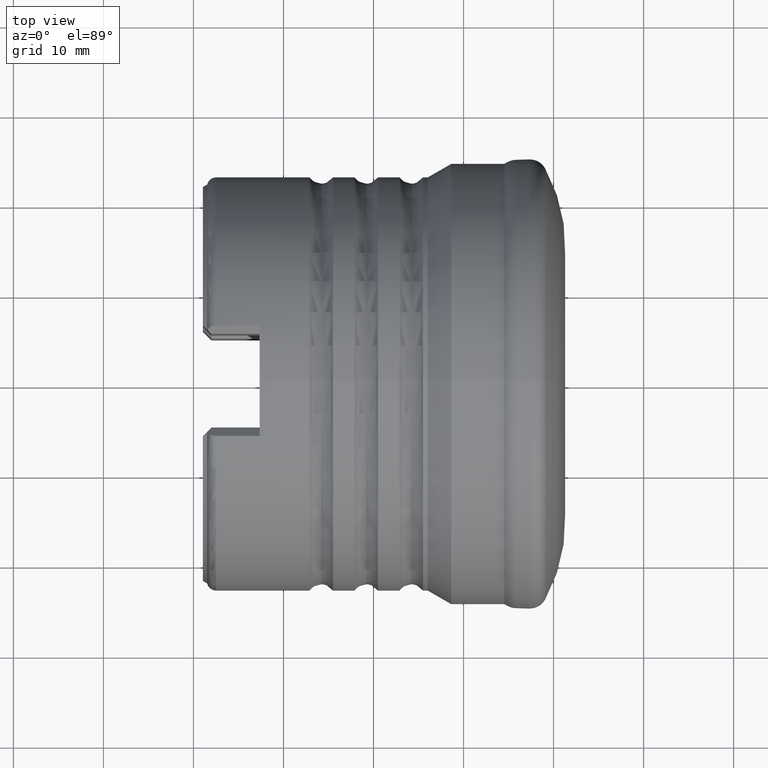
[diagram: clean part render]
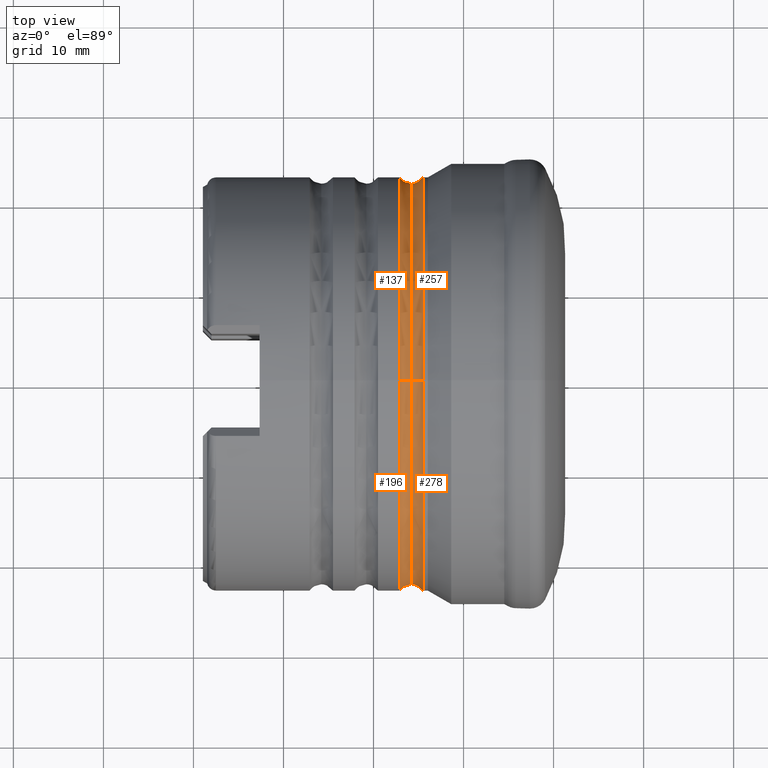
[diagram: same view with one multi-face feature highlighted, each face labeled with its STEP entity id]
A machine part, top view. The highlighted faces form ONE feature: a constant-radius fillet chain: 4 tangent blend faces with common blend radius 1.5 mm. The faces share edges in the B-rep.
Their STEP definitions:
[1] entity #196 (Torus):
#32 = EDGE_CURVE ( 'NONE', #401, #2545, #1471, .T. ) ;
#39 = EDGE_CURVE ( 'NONE', #2559, #401, #1397, .T. ) ;
#46 = EDGE_CURVE ( 'NONE', #2551, #2545, #1575, .T. ) ;
#104 = AXIS2_PLACEMENT_3D ( 'NONE', #1898, #1882, #1931 ) ;
#107 = AXIS2_PLACEMENT_3D ( 'NONE', #1879, #1804, #1837 ) ;
#109 = AXIS2_PLACEMENT_3D ( 'NONE', #1782, #1784, #1828 ) ;
#145 = AXIS2_PLACEMENT_3D ( 'NONE', #2411, #2450, #2378 ) ;
#196 = ADVANCED_FACE ( 'NONE', ( #1279 ), #1393, .F. ) ;
#331 = AXIS2_PLACEMENT_3D ( 'NONE', #871, #882, #883 ) ;
#401 = VERTEX_POINT ( 'NONE', #515 ) ;
#515 = CARTESIAN_POINT ( 'NONE',  ( -17.10000000000000100, 2.816687638038912400E-015, 22.99999999999999600 ) ) ;
#871 = CARTESIAN_POINT ( 'NONE',  ( -15.80096189432334000, 0.0000000000000000000, 0.0000000000000000000 ) ) ;
#882 = DIRECTION ( 'NONE',  ( 1.000000000000000000, -0.0000000000000000000, -0.0000000000000000000 ) ) ;
#883 = DIRECTION ( 'NONE',  ( 0.0000000000000000000, 0.0000000000000000000, -1.000000000000000000 ) ) ;
#1007 = CARTESIAN_POINT ( 'NONE',  ( -17.10000000000000100, 0.0000000000000000000, -22.99999999999999600 ) ) ;
#1012 = CARTESIAN_POINT ( 'NONE',  ( -15.80096189432334000, 0.0000000000000000000, -22.24999999999999300 ) ) ;
#1019 = CARTESIAN_POINT ( 'NONE',  ( -15.80096189432334000, 2.724839128102860200E-015, 22.24999999999999300 ) ) ;
#1265 = ORIENTED_EDGE ( 'NONE', *, *, #46, .F. ) ;
#1279 = FACE_OUTER_BOUND ( 'NONE', #1453, .T. ) ;
#1315 = ORIENTED_EDGE ( 'NONE', *, *, #32, .T. ) ;
#1393 = TOROIDAL_SURFACE ( 'NONE', #145, 23.74999999999999300, 1.500000000000000200 ) ;
#1397 = CIRCLE ( 'NONE', #107, 1.500000000000001300 ) ;
#1428 = ORIENTED_EDGE ( 'NONE', *, *, #39, .T. ) ;
#1453 = EDGE_LOOP ( 'NONE', ( #1657, #1428, #1315, #1265 ) ) ;
#1471 = CIRCLE ( 'NONE', #104, 22.99999999999999600 ) ;
#1575 = CIRCLE ( 'NONE', #109, 1.500000000000001300 ) ;
#1657 = ORIENTED_EDGE ( 'NONE', *, *, #2331, .F. ) ;
#1782 = CARTESIAN_POINT ( 'NONE',  ( -15.80096189432334000, 0.0000000000000000000, -23.74999999999999300 ) ) ;
#1784 = DIRECTION ( 'NONE',  ( -0.0000000000000000000, -1.000000000000000000, -0.0000000000000000000 ) ) ;
#1804 = DIRECTION ( 'NONE',  ( 0.0000000000000000000, 1.000000000000000000, -1.224646799147353200E-016 ) ) ;
#1828 = DIRECTION ( 'NONE',  ( 0.0000000000000000000, 0.0000000000000000000, -1.000000000000000000 ) ) ;
#1837 = DIRECTION ( 'NONE',  ( 0.0000000000000000000, 1.224646799147352000E-016, 1.000000000000000000 ) ) ;
#1879 = CARTESIAN_POINT ( 'NONE',  ( -15.80096189432334000, 2.908536147974963300E-015, 23.74999999999999300 ) ) ;
#1882 = DIRECTION ( 'NONE',  ( 1.000000000000000000, -0.0000000000000000000, -0.0000000000000000000 ) ) ;
#1898 = CARTESIAN_POINT ( 'NONE',  ( -17.10000000000000100, 0.0000000000000000000, 0.0000000000000000000 ) ) ;
#1931 = DIRECTION ( 'NONE',  ( 0.0000000000000000000, 0.0000000000000000000, -1.000000000000000000 ) ) ;
#2162 = CIRCLE ( 'NONE', #331, 22.24999999999999300 ) ;
#2331 = EDGE_CURVE ( 'NONE', #2559, #2551, #2162, .T. ) ;
#2378 = DIRECTION ( 'NONE',  ( 0.0000000000000000000, 0.0000000000000000000, -1.000000000000000000 ) ) ;
#2411 = CARTESIAN_POINT ( 'NONE',  ( -15.80096189432334000, 0.0000000000000000000, 0.0000000000000000000 ) ) ;
#2450 = DIRECTION ( 'NONE',  ( 1.000000000000000000, -0.0000000000000000000, -0.0000000000000000000 ) ) ;
#2545 = VERTEX_POINT ( 'NONE', #1007 ) ;
#2551 = VERTEX_POINT ( 'NONE', #1012 ) ;
#2559 = VERTEX_POINT ( 'NONE', #1019 ) ;
[2] entity #278 (Torus):
#193 = AXIS2_PLACEMENT_3D ( 'NONE', #2412, #2396, #2421 ) ;
#278 = ADVANCED_FACE ( 'NONE', ( #1097 ), #1274, .F. ) ;
#324 = AXIS2_PLACEMENT_3D ( 'NONE', #848, #857, #858 ) ;
#331 = AXIS2_PLACEMENT_3D ( 'NONE', #871, #882, #883 ) ;
#348 = AXIS2_PLACEMENT_3D ( 'NONE', #950, #959, #960 ) ;
#351 = AXIS2_PLACEMENT_3D ( 'NONE', #964, #970, #971 ) ;
#848 = CARTESIAN_POINT ( 'NONE',  ( -14.50192378864668000, 0.0000000000000000000, 0.0000000000000000000 ) ) ;
#857 = DIRECTION ( 'NONE',  ( 1.000000000000000000, -0.0000000000000000000, -0.0000000000000000000 ) ) ;
#858 = DIRECTION ( 'NONE',  ( 0.0000000000000000000, 0.0000000000000000000, -1.000000000000000000 ) ) ;
#871 = CARTESIAN_POINT ( 'NONE',  ( -15.80096189432334000, 0.0000000000000000000, 0.0000000000000000000 ) ) ;
#882 = DIRECTION ( 'NONE',  ( 1.000000000000000000, -0.0000000000000000000, -0.0000000000000000000 ) ) ;
#883 = DIRECTION ( 'NONE',  ( 0.0000000000000000000, 0.0000000000000000000, -1.000000000000000000 ) ) ;
#950 = CARTESIAN_POINT ( 'NONE',  ( -15.80096189432334000, 0.0000000000000000000, -23.74999999999999300 ) ) ;
#959 = DIRECTION ( 'NONE',  ( -0.0000000000000000000, -1.000000000000000000, -0.0000000000000000000 ) ) ;
#960 = DIRECTION ( 'NONE',  ( 0.0000000000000000000, 0.0000000000000000000, -1.000000000000000000 ) ) ;
#964 = CARTESIAN_POINT ( 'NONE',  ( -15.80096189432334000, 2.908536147974963300E-015, 23.74999999999999300 ) ) ;
#970 = DIRECTION ( 'NONE',  ( 0.0000000000000000000, 1.000000000000000000, -1.224646799147353200E-016 ) ) ;
#971 = DIRECTION ( 'NONE',  ( 0.0000000000000000000, 1.224646799147352000E-016, 1.000000000000000000 ) ) ;
#1012 = CARTESIAN_POINT ( 'NONE',  ( -15.80096189432334000, 0.0000000000000000000, -22.24999999999999300 ) ) ;
#1014 = CARTESIAN_POINT ( 'NONE',  ( -14.50192378864668000, 2.816687638038912000E-015, 22.99999999999999600 ) ) ;
#1019 = CARTESIAN_POINT ( 'NONE',  ( -15.80096189432334000, 2.724839128102860200E-015, 22.24999999999999300 ) ) ;
#1023 = CARTESIAN_POINT ( 'NONE',  ( -14.50192378864668000, 0.0000000000000000000, -22.99999999999999600 ) ) ;
#1091 = ORIENTED_EDGE ( 'NONE', *, *, #2358, .T. ) ;
#1097 = FACE_OUTER_BOUND ( 'NONE', #1182, .T. ) ;
#1182 = EDGE_LOOP ( 'NONE', ( #1091, #1309, #1621, #1559 ) ) ;
#1274 = TOROIDAL_SURFACE ( 'NONE', #193, 23.74999999999999300, 1.500000000000000200 ) ;
#1309 = ORIENTED_EDGE ( 'NONE', *, *, #2331, .T. ) ;
#1559 = ORIENTED_EDGE ( 'NONE', *, *, #2322, .F. ) ;
#1621 = ORIENTED_EDGE ( 'NONE', *, *, #2354, .F. ) ;
#2149 = CIRCLE ( 'NONE', #324, 22.99999999999999600 ) ;
#2162 = CIRCLE ( 'NONE', #331, 22.24999999999999300 ) ;
#2235 = CIRCLE ( 'NONE', #348, 1.500000000000001300 ) ;
#2261 = CIRCLE ( 'NONE', #351, 1.500000000000001300 ) ;
#2322 = EDGE_CURVE ( 'NONE', #2554, #2563, #2149, .T. ) ;
#2331 = EDGE_CURVE ( 'NONE', #2559, #2551, #2162, .T. ) ;
#2354 = EDGE_CURVE ( 'NONE', #2563, #2551, #2235, .T. ) ;
#2358 = EDGE_CURVE ( 'NONE', #2554, #2559, #2261, .T. ) ;
#2396 = DIRECTION ( 'NONE',  ( 1.000000000000000000, -0.0000000000000000000, -0.0000000000000000000 ) ) ;
#2412 = CARTESIAN_POINT ( 'NONE',  ( -15.80096189432334000, 0.0000000000000000000, 0.0000000000000000000 ) ) ;
#2421 = DIRECTION ( 'NONE',  ( 0.0000000000000000000, 0.0000000000000000000, -1.000000000000000000 ) ) ;
#2551 = VERTEX_POINT ( 'NONE', #1012 ) ;
#2554 = VERTEX_POINT ( 'NONE', #1014 ) ;
#2559 = VERTEX_POINT ( 'NONE', #1019 ) ;
#2563 = VERTEX_POINT ( 'NONE', #1023 ) ;
[3] entity #257 (Torus):
#72 = EDGE_CURVE ( 'NONE', #2551, #2559, #1217, .T. ) ;
#119 = AXIS2_PLACEMENT_3D ( 'NONE', #1905, #1789, #1799 ) ;
#180 = AXIS2_PLACEMENT_3D ( 'NONE', #2407, #2430, #2486 ) ;
#257 = ADVANCED_FACE ( 'NONE', ( #1135 ), #1354, .F. ) ;
#343 = AXIS2_PLACEMENT_3D ( 'NONE', #937, #944, #945 ) ;
#348 = AXIS2_PLACEMENT_3D ( 'NONE', #950, #959, #960 ) ;
#351 = AXIS2_PLACEMENT_3D ( 'NONE', #964, #970, #971 ) ;
#937 = CARTESIAN_POINT ( 'NONE',  ( -14.50192378864668000, 0.0000000000000000000, 0.0000000000000000000 ) ) ;
#944 = DIRECTION ( 'NONE',  ( 1.000000000000000000, -0.0000000000000000000, -0.0000000000000000000 ) ) ;
#945 = DIRECTION ( 'NONE',  ( 0.0000000000000000000, 0.0000000000000000000, -1.000000000000000000 ) ) ;
#950 = CARTESIAN_POINT ( 'NONE',  ( -15.80096189432334000, 0.0000000000000000000, -23.74999999999999300 ) ) ;
#959 = DIRECTION ( 'NONE',  ( -0.0000000000000000000, -1.000000000000000000, -0.0000000000000000000 ) ) ;
#960 = DIRECTION ( 'NONE',  ( 0.0000000000000000000, 0.0000000000000000000, -1.000000000000000000 ) ) ;
#964 = CARTESIAN_POINT ( 'NONE',  ( -15.80096189432334000, 2.908536147974963300E-015, 23.74999999999999300 ) ) ;
#970 = DIRECTION ( 'NONE',  ( 0.0000000000000000000, 1.000000000000000000, -1.224646799147353200E-016 ) ) ;
#971 = DIRECTION ( 'NONE',  ( 0.0000000000000000000, 1.224646799147352000E-016, 1.000000000000000000 ) ) ;
#1012 = CARTESIAN_POINT ( 'NONE',  ( -15.80096189432334000, 0.0000000000000000000, -22.24999999999999300 ) ) ;
#1014 = CARTESIAN_POINT ( 'NONE',  ( -14.50192378864668000, 2.816687638038912000E-015, 22.99999999999999600 ) ) ;
#1019 = CARTESIAN_POINT ( 'NONE',  ( -15.80096189432334000, 2.724839128102860200E-015, 22.24999999999999300 ) ) ;
#1023 = CARTESIAN_POINT ( 'NONE',  ( -14.50192378864668000, 0.0000000000000000000, -22.99999999999999600 ) ) ;
#1135 = FACE_OUTER_BOUND ( 'NONE', #1572, .T. ) ;
#1217 = CIRCLE ( 'NONE', #119, 22.24999999999999300 ) ;
#1260 = ORIENTED_EDGE ( 'NONE', *, *, #2354, .T. ) ;
#1329 = ORIENTED_EDGE ( 'NONE', *, *, #2358, .F. ) ;
#1354 = TOROIDAL_SURFACE ( 'NONE', #180, 23.74999999999999300, 1.500000000000000200 ) ;
#1488 = ORIENTED_EDGE ( 'NONE', *, *, #2349, .F. ) ;
#1570 = ORIENTED_EDGE ( 'NONE', *, *, #72, .T. ) ;
#1572 = EDGE_LOOP ( 'NONE', ( #1260, #1570, #1329, #1488 ) ) ;
#1789 = DIRECTION ( 'NONE',  ( 1.000000000000000000, -0.0000000000000000000, -0.0000000000000000000 ) ) ;
#1799 = DIRECTION ( 'NONE',  ( 0.0000000000000000000, 0.0000000000000000000, -1.000000000000000000 ) ) ;
#1905 = CARTESIAN_POINT ( 'NONE',  ( -15.80096189432334000, 0.0000000000000000000, 0.0000000000000000000 ) ) ;
#2235 = CIRCLE ( 'NONE', #348, 1.500000000000001300 ) ;
#2236 = CIRCLE ( 'NONE', #343, 22.99999999999999600 ) ;
#2261 = CIRCLE ( 'NONE', #351, 1.500000000000001300 ) ;
#2349 = EDGE_CURVE ( 'NONE', #2563, #2554, #2236, .T. ) ;
#2354 = EDGE_CURVE ( 'NONE', #2563, #2551, #2235, .T. ) ;
#2358 = EDGE_CURVE ( 'NONE', #2554, #2559, #2261, .T. ) ;
#2407 = CARTESIAN_POINT ( 'NONE',  ( -15.80096189432334000, 0.0000000000000000000, 0.0000000000000000000 ) ) ;
#2430 = DIRECTION ( 'NONE',  ( 1.000000000000000000, -0.0000000000000000000, -0.0000000000000000000 ) ) ;
#2486 = DIRECTION ( 'NONE',  ( 0.0000000000000000000, 0.0000000000000000000, -1.000000000000000000 ) ) ;
#2551 = VERTEX_POINT ( 'NONE', #1012 ) ;
#2554 = VERTEX_POINT ( 'NONE', #1014 ) ;
#2559 = VERTEX_POINT ( 'NONE', #1019 ) ;
#2563 = VERTEX_POINT ( 'NONE', #1023 ) ;
[4] entity #137 (Torus):
#39 = EDGE_CURVE ( 'NONE', #2559, #401, #1397, .T. ) ;
#46 = EDGE_CURVE ( 'NONE', #2551, #2545, #1575, .T. ) ;
#72 = EDGE_CURVE ( 'NONE', #2551, #2559, #1217, .T. ) ;
#107 = AXIS2_PLACEMENT_3D ( 'NONE', #1879, #1804, #1837 ) ;
#109 = AXIS2_PLACEMENT_3D ( 'NONE', #1782, #1784, #1828 ) ;
#119 = AXIS2_PLACEMENT_3D ( 'NONE', #1905, #1789, #1799 ) ;
#129 = AXIS2_PLACEMENT_3D ( 'NONE', #2394, #2488, #2485 ) ;
#137 = ADVANCED_FACE ( 'NONE', ( #1551 ), #1591, .F. ) ;
#234 = AXIS2_PLACEMENT_3D ( 'NONE', #518, #511, #570 ) ;
#401 = VERTEX_POINT ( 'NONE', #515 ) ;
#511 = DIRECTION ( 'NONE',  ( 1.000000000000000000, -0.0000000000000000000, -0.0000000000000000000 ) ) ;
#515 = CARTESIAN_POINT ( 'NONE',  ( -17.10000000000000100, 2.816687638038912400E-015, 22.99999999999999600 ) ) ;
#518 = CARTESIAN_POINT ( 'NONE',  ( -17.10000000000000100, 0.0000000000000000000, 0.0000000000000000000 ) ) ;
#570 = DIRECTION ( 'NONE',  ( 0.0000000000000000000, 0.0000000000000000000, -1.000000000000000000 ) ) ;
#1007 = CARTESIAN_POINT ( 'NONE',  ( -17.10000000000000100, 0.0000000000000000000, -22.99999999999999600 ) ) ;
#1012 = CARTESIAN_POINT ( 'NONE',  ( -15.80096189432334000, 0.0000000000000000000, -22.24999999999999300 ) ) ;
#1019 = CARTESIAN_POINT ( 'NONE',  ( -15.80096189432334000, 2.724839128102860200E-015, 22.24999999999999300 ) ) ;
#1076 = ORIENTED_EDGE ( 'NONE', *, *, #1993, .T. ) ;
#1117 = ORIENTED_EDGE ( 'NONE', *, *, #46, .T. ) ;
#1217 = CIRCLE ( 'NONE', #119, 22.24999999999999300 ) ;
#1334 = EDGE_LOOP ( 'NONE', ( #1498, #1117, #1076, #1406 ) ) ;
#1397 = CIRCLE ( 'NONE', #107, 1.500000000000001300 ) ;
#1406 = ORIENTED_EDGE ( 'NONE', *, *, #39, .F. ) ;
#1498 = ORIENTED_EDGE ( 'NONE', *, *, #72, .F. ) ;
#1551 = FACE_OUTER_BOUND ( 'NONE', #1334, .T. ) ;
#1575 = CIRCLE ( 'NONE', #109, 1.500000000000001300 ) ;
#1591 = TOROIDAL_SURFACE ( 'NONE', #129, 23.74999999999999300, 1.500000000000000200 ) ;
#1782 = CARTESIAN_POINT ( 'NONE',  ( -15.80096189432334000, 0.0000000000000000000, -23.74999999999999300 ) ) ;
#1784 = DIRECTION ( 'NONE',  ( -0.0000000000000000000, -1.000000000000000000, -0.0000000000000000000 ) ) ;
#1789 = DIRECTION ( 'NONE',  ( 1.000000000000000000, -0.0000000000000000000, -0.0000000000000000000 ) ) ;
#1799 = DIRECTION ( 'NONE',  ( 0.0000000000000000000, 0.0000000000000000000, -1.000000000000000000 ) ) ;
#1804 = DIRECTION ( 'NONE',  ( 0.0000000000000000000, 1.000000000000000000, -1.224646799147353200E-016 ) ) ;
#1828 = DIRECTION ( 'NONE',  ( 0.0000000000000000000, 0.0000000000000000000, -1.000000000000000000 ) ) ;
#1837 = DIRECTION ( 'NONE',  ( 0.0000000000000000000, 1.224646799147352000E-016, 1.000000000000000000 ) ) ;
#1879 = CARTESIAN_POINT ( 'NONE',  ( -15.80096189432334000, 2.908536147974963300E-015, 23.74999999999999300 ) ) ;
#1905 = CARTESIAN_POINT ( 'NONE',  ( -15.80096189432334000, 0.0000000000000000000, 0.0000000000000000000 ) ) ;
#1993 = EDGE_CURVE ( 'NONE', #2545, #401, #2221, .T. ) ;
#2221 = CIRCLE ( 'NONE', #234, 22.99999999999999600 ) ;
#2394 = CARTESIAN_POINT ( 'NONE',  ( -15.80096189432334000, 0.0000000000000000000, 0.0000000000000000000 ) ) ;
#2485 = DIRECTION ( 'NONE',  ( 0.0000000000000000000, 0.0000000000000000000, -1.000000000000000000 ) ) ;
#2488 = DIRECTION ( 'NONE',  ( 1.000000000000000000, -0.0000000000000000000, -0.0000000000000000000 ) ) ;
#2545 = VERTEX_POINT ( 'NONE', #1007 ) ;
#2551 = VERTEX_POINT ( 'NONE', #1012 ) ;
#2559 = VERTEX_POINT ( 'NONE', #1019 ) ;